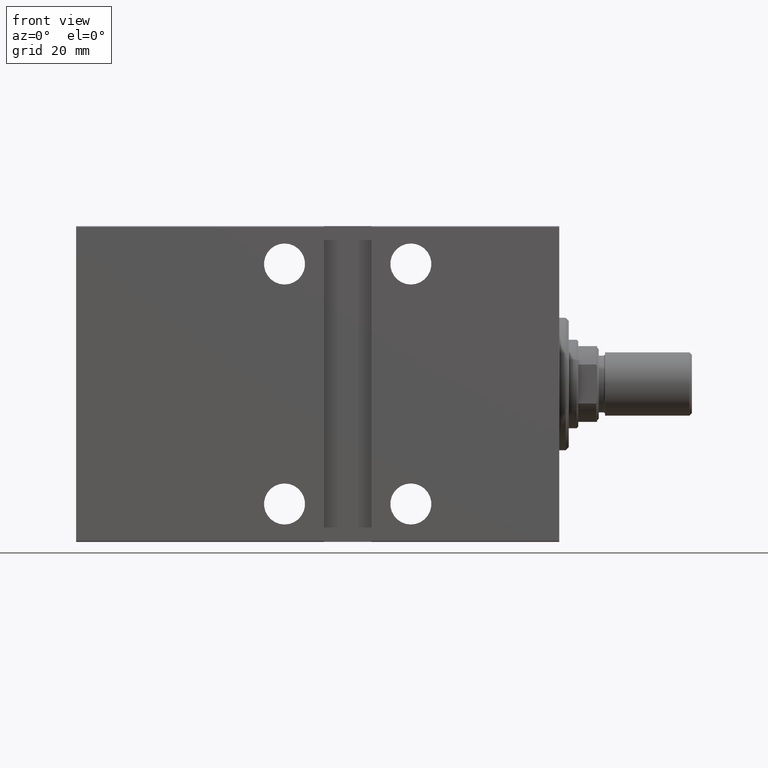
[diagram: clean part render]
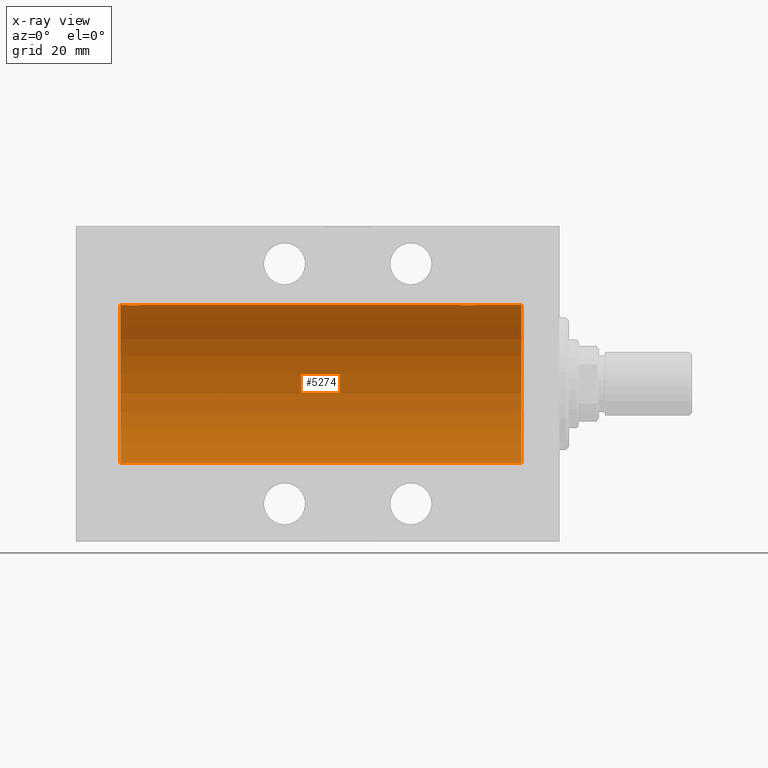
[diagram: x-ray — body ghosted, one internal face saturated and labeled with its STEP entity id]
A machine part, front view, then the same camera in x-ray: the body is ghosted and one INTERNAL B-rep face — a face not visible from any outside direction — is saturated and labeled: STEP entity #5274.
In plain terms, the highlighted cylindrical surface (partial cylindrical patch) has radius 25 mm, axis along (1, 0, -0).
Its self-contained STEP definition (entity closure, byte-faithful):
#145 = ORIENTED_EDGE ( 'NONE', *, *, #17108, .T. ) ;
#397 = B_SPLINE_CURVE_WITH_KNOTS ( 'NONE', 3,
 ( #5100, #12261, #42761, #12038, #22367, #29544, #15187, #9367, #28862, #36041, #15649, #2197, #19003, #25495, #25719, #36273, #32681, #40090, #18552, #16098, #29318, #42528, #39184, #25944, #22601, #36720, #8468, #29771, #18772, #43214, #26177, #39630 ),
 .UNSPECIFIED., .F., .F.,
 ( 4, 2, 2, 2, 2, 2, 2, 2, 2, 2, 2, 2, 2, 2, 2, 4 ),
 ( 0.007821024441662268595, 0.008309723826317871528, 0.008798423210973474462, 0.009287122595629077396, 0.009775821980284680329, 0.01026452136494028326, 0.01075322074959588620, 0.01124192013425148913, 0.01173061951890709206, 0.01221931890356269326, 0.01270801828821829793, 0.01319671767287389913, 0.01368541705752950380, 0.01417411644218510500, 0.01466281582684070967, 0.01564021459615191553 ),
 .UNSPECIFIED. ) ;
#599 = B_SPLINE_CURVE_WITH_KNOTS ( 'NONE', 3,
 ( #11689, #8784, #11259, #25375, #28519, #42188, #22242, #35916, #8347, #32326, #28965, #42633, #5199, #7899, #18873, #22469, #16419, #12594, #33223, #22926, #19108, #2294, #32784, #19335, #2519, #40185, #12819, #2077, #23369, #15968, #15749, #30083 ),
 .UNSPECIFIED., .F., .F.,
 ( 4, 2, 2, 2, 2, 2, 2, 2, 2, 2, 2, 2, 2, 2, 2, 4 ),
 ( 0.007821024441662306759, 0.008309723826317914896, 0.008798423210973523034, 0.009287122595629131172, 0.009775821980284739310, 0.01026452136494034745, 0.01075322074959595559, 0.01124192013425156372, 0.01173061951890717186, 0.01221931890356278000, 0.01270801828821838814, 0.01319671767287399627, 0.01368541705752960441, 0.01417411644218521255, 0.01466281582684082069, 0.01564021459615200227 ),
 .UNSPECIFIED. ) ;
#1891 = CARTESIAN_POINT ( 'NONE',  ( 26.50000000000000355, -1.940518940753166940E-23, 25.00000000000000000 ) ) ;
#2037 = EDGE_CURVE ( 'NONE', #37547, #6848, #8237, .T. ) ;
#2077 = CARTESIAN_POINT ( 'NONE',  ( 137.1682764149395268, -1.255214705003177889, 24.96884293994577320 ) ) ;
#2197 = CARTESIAN_POINT ( 'NONE',  ( 27.74616804575498108, -2.169003991399864439, 24.90589728951138682 ) ) ;
#2294 = CARTESIAN_POINT ( 'NONE',  ( 136.1072384583841313, -2.247417070759885060, 24.89885693081946982 ) ) ;
#2519 = CARTESIAN_POINT ( 'NONE',  ( 136.6512113355911140, -1.884161199660612240, 24.92916496727982079 ) ) ;
#2910 = VERTEX_POINT ( 'NONE', #40506 ) ;
#3896 = ORIENTED_EDGE ( 'NONE', *, *, #35871, .T. ) ;
#4393 = CARTESIAN_POINT ( 'NONE',  ( 139.0000000000000000, 3.061616997868383043E-15, -25.00000000000000000 ) ) ;
#4801 = ORIENTED_EDGE ( 'NONE', *, *, #21903, .T. ) ;
#4816 = VECTOR ( 'NONE', #33302, 1000.000000000000000 ) ;
#5100 = CARTESIAN_POINT ( 'NONE',  ( 26.50000000000000355, -1.940518940753166940E-23, 25.00000000000000000 ) ) ;
#5199 = CARTESIAN_POINT ( 'NONE',  ( 133.8896320349114148, -2.245863995402891611, 24.89899750494197761 ) ) ;
#5274 = ADVANCED_FACE ( 'NONE', ( #38021 ), #6664, .F. ) ;
#5757 = ORIENTED_EDGE ( 'NONE', *, *, #23548, .F. ) ;
#6564 = CARTESIAN_POINT ( 'NONE',  ( 12.00000000000001066, 3.061616997868383043E-15, -25.00000000000000000 ) ) ;
#6664 = CYLINDRICAL_SURFACE ( 'NONE', #8171, 25.00000000000000000 ) ;
#6848 = VERTEX_POINT ( 'NONE', #26463 ) ;
#7094 = CARTESIAN_POINT ( 'NONE',  ( 132.5000000000000000, -1.941505016884693205E-23, 25.00000000000000000 ) ) ;
#7449 = DIRECTION ( 'NONE',  ( -1.000000000000000000, 0.000000000000000000, 0.000000000000000000 ) ) ;
#7891 = DIRECTION ( 'NONE',  ( 0.000000000000000000, 0.000000000000000000, 1.000000000000000000 ) ) ;
#7899 = CARTESIAN_POINT ( 'NONE',  ( 134.1921165759419239, -2.371528299825738539, 24.88734287464371064 ) ) ;
#8171 = AXIS2_PLACEMENT_3D ( 'NONE', #16970, #13607, #27285 ) ;
#8237 = CIRCLE ( 'NONE', #26846, 25.00000000000000000 ) ;
#8347 = CARTESIAN_POINT ( 'NONE',  ( 133.1158761721353017, -1.651251241585098395, 24.94567559498349141 ) ) ;
#8468 = CARTESIAN_POINT ( 'NONE',  ( 30.98538033717094464, -1.528152964861309915, 24.95362559291378801 ) ) ;
#8784 = CARTESIAN_POINT ( 'NONE',  ( 132.4999999999999716, -0.1631750940176176501, 25.00000000000000711 ) ) ;
#9367 = CARTESIAN_POINT ( 'NONE',  ( 27.01250184165601809, -1.525407911884361756, 24.95379469572361586 ) ) ;
#9440 = EDGE_CURVE ( 'NONE', #19372, #23324, #10414, .T. ) ;
#10414 = LINE ( 'NONE', #27246, #28327 ) ;
#11259 = CARTESIAN_POINT ( 'NONE',  ( 132.5158215994234752, -0.3254210271412192879, 24.99840249400844527 ) ) ;
#11689 = CARTESIAN_POINT ( 'NONE',  ( 132.5000000000000000, -1.941505016884693205E-23, 25.00000000000000000 ) ) ;
#12038 = CARTESIAN_POINT ( 'NONE',  ( 26.57985090779070703, -0.6480119923854216202, 24.99212088949391131 ) ) ;
#12261 = CARTESIAN_POINT ( 'NONE',  ( 26.50000000000000711, -0.1631750940176204812, 25.00000000000000711 ) ) ;
#12594 = CARTESIAN_POINT ( 'NONE',  ( 135.1632358963854585, -2.500125740978183853, 24.87467329022545570 ) ) ;
#12819 = CARTESIAN_POINT ( 'NONE',  ( 136.9853803371709375, -1.528152964861306584, 24.95362559291379156 ) ) ;
#13607 = DIRECTION ( 'NONE',  ( -1.000000000000000000, -0.000000000000000000, -0.000000000000000000 ) ) ;
#13984 = CARTESIAN_POINT ( 'NONE',  ( 139.0000000000000000, 3.061616997868383043E-15, -25.00000000000000000 ) ) ;
#14469 = CIRCLE ( 'NONE', #39545, 25.00000000000000000 ) ;
#15187 = CARTESIAN_POINT ( 'NONE',  ( 26.82988709719076681, -1.252049606094334910, 24.96900299967627390 ) ) ;
#15649 = CARTESIAN_POINT ( 'NONE',  ( 27.47463817756919724, -1.987446652080258724, 24.92104239223420947 ) ) ;
#15749 = CARTESIAN_POINT ( 'NONE',  ( 137.5000000000000284, -0.3305063766663746128, 25.00000000000000711 ) ) ;
#15968 = CARTESIAN_POINT ( 'NONE',  ( 137.4334935523974934, -0.6588655613945783029, 24.99312727339971119 ) ) ;
#16098 = CARTESIAN_POINT ( 'NONE',  ( 29.64560666148631896, -2.420689345803753501, 24.88254961038874313 ) ) ;
#16419 = CARTESIAN_POINT ( 'NONE',  ( 134.8329350482193831, -2.499872792855069470, 24.87469871246082675 ) ) ;
#16970 = CARTESIAN_POINT ( 'NONE',  ( 139.0000000000000000, 0.000000000000000000, 0.000000000000000000 ) ) ;
#17108 = EDGE_CURVE ( 'NONE', #37547, #23491, #35109, .T. ) ;
#17146 = DIRECTION ( 'NONE',  ( -1.000000000000000000, -0.000000000000000000, -0.000000000000000000 ) ) ;
#18552 = CARTESIAN_POINT ( 'NONE',  ( 29.32596570039460104, -2.484007091859757654, 24.87630842367763861 ) ) ;
#18772 = CARTESIAN_POINT ( 'NONE',  ( 31.24606379094066710, -1.109818057797416824, 24.97580694515542632 ) ) ;
#18873 = CARTESIAN_POINT ( 'NONE',  ( 134.3509560983090978, -2.419770561643896922, 24.88263927071751880 ) ) ;
#19003 = CARTESIAN_POINT ( 'NONE',  ( 27.88963203491136511, -2.245863995402893831, 24.89899750494197406 ) ) ;
#19108 = CARTESIAN_POINT ( 'NONE',  ( 135.8043566091629941, -2.372734907014162786, 24.88722742718433167 ) ) ;
#19262 = CARTESIAN_POINT ( 'NONE',  ( 137.5000000000000000, 9.792438154224103788E-16, 25.00000000000000000 ) ) ;
#19335 = CARTESIAN_POINT ( 'NONE',  ( 136.5225677434019076, -1.989585286700244149, 24.92087098724766037 ) ) ;
#19372 = VERTEX_POINT ( 'NONE', #1891 ) ;
#19427 = CARTESIAN_POINT ( 'NONE',  ( 139.0000000000000000, 0.000000000000000000, 25.00000000000000000 ) ) ;
#19635 = EDGE_LOOP ( 'NONE', ( #37555, #145, #4801, #34402, #37245, #5757, #3896, #41365 ) ) ;
#21903 = EDGE_CURVE ( 'NONE', #23491, #23324, #14469, .T. ) ;
#21953 = VERTEX_POINT ( 'NONE', #7094 ) ;
#22242 = CARTESIAN_POINT ( 'NONE',  ( 132.8298870971908059, -1.252049606094330914, 24.96900299967627745 ) ) ;
#22367 = CARTESIAN_POINT ( 'NONE',  ( 26.62784030591393147, -0.8058335233485444116, 24.98746277938383642 ) ) ;
#22469 = CARTESIAN_POINT ( 'NONE',  ( 134.6705231988572962, -2.483544361357258978, 24.87635491893502149 ) ) ;
#22601 = CARTESIAN_POINT ( 'NONE',  ( 30.65121133559111755, -1.884161199660612906, 24.92916496727982434 ) ) ;
#22926 = CARTESIAN_POINT ( 'NONE',  ( 135.6456066614863403, -2.420689345803753501, 24.88254961038873603 ) ) ;
#23324 = VERTEX_POINT ( 'NONE', #29059 ) ;
#23369 = CARTESIAN_POINT ( 'NONE',  ( 137.2460637909406671, -1.109818057797406832, 24.97580694515542277 ) ) ;
#23491 = VERTEX_POINT ( 'NONE', #6564 ) ;
#23548 = EDGE_CURVE ( 'NONE', #21953, #2910, #31201, .T. ) ;
#23843 = VECTOR ( 'NONE', #31738, 1000.000000000000000 ) ;
#25375 = CARTESIAN_POINT ( 'NONE',  ( 132.5798509077906999, -0.6480119923854186226, 24.99212088949390420 ) ) ;
#25495 = CARTESIAN_POINT ( 'NONE',  ( 28.19211657594194520, -2.371528299825740760, 24.88734287464371420 ) ) ;
#25719 = CARTESIAN_POINT ( 'NONE',  ( 28.35095609830903740, -2.419770561643901363, 24.88263927071751169 ) ) ;
#25944 = CARTESIAN_POINT ( 'NONE',  ( 30.52256774340189338, -1.989585286700240596, 24.92087098724766747 ) ) ;
#26166 = CARTESIAN_POINT ( 'NONE',  ( 12.00000000000001066, 0.000000000000000000, 0.000000000000000000 ) ) ;
#26177 = CARTESIAN_POINT ( 'NONE',  ( 31.49999999999996447, -0.3305063766663697833, 24.99999999999999645 ) ) ;
#26463 = CARTESIAN_POINT ( 'NONE',  ( 139.0000000000000000, 0.000000000000000000, 25.00000000000000000 ) ) ;
#26846 = AXIS2_PLACEMENT_3D ( 'NONE', #28510, #7449, #7891 ) ;
#27246 = CARTESIAN_POINT ( 'NONE',  ( 139.0000000000000000, 0.000000000000000000, 25.00000000000000000 ) ) ;
#27285 = DIRECTION ( 'NONE',  ( 0.000000000000000000, 0.000000000000000000, 1.000000000000000000 ) ) ;
#28327 = VECTOR ( 'NONE', #17146, 1000.000000000000000 ) ;
#28510 = CARTESIAN_POINT ( 'NONE',  ( 139.0000000000000000, 0.000000000000000000, 0.000000000000000000 ) ) ;
#28519 = CARTESIAN_POINT ( 'NONE',  ( 132.6278403059139919, -0.8058335233485485194, 24.98746277938383642 ) ) ;
#28862 = CARTESIAN_POINT ( 'NONE',  ( 27.11587617213528389, -1.651251241585097063, 24.94567559498348430 ) ) ;
#28965 = CARTESIAN_POINT ( 'NONE',  ( 133.4746381775692043, -1.987446652080248732, 24.92104239223420592 ) ) ;
#29059 = CARTESIAN_POINT ( 'NONE',  ( 12.00000000000001066, 0.000000000000000000, 25.00000000000000000 ) ) ;
#29318 = CARTESIAN_POINT ( 'NONE',  ( 29.80435660916301543, -2.372734907014168115, 24.88722742718433878 ) ) ;
#29544 = CARTESIAN_POINT ( 'NONE',  ( 26.75239748980449406, -1.106703319666880514, 24.97594585958024282 ) ) ;
#29771 = CARTESIAN_POINT ( 'NONE',  ( 31.16827641493956591, -1.255214705003181441, 24.96884293994578030 ) ) ;
#29986 = VERTEX_POINT ( 'NONE', #19262 ) ;
#30083 = CARTESIAN_POINT ( 'NONE',  ( 137.5000000000000000, 9.792438154224103788E-16, 25.00000000000000000 ) ) ;
#30591 = CARTESIAN_POINT ( 'NONE',  ( 139.0000000000000000, 0.000000000000000000, 25.00000000000000000 ) ) ;
#31201 = LINE ( 'NONE', #19427, #40351 ) ;
#31738 = DIRECTION ( 'NONE',  ( -1.000000000000000000, -0.000000000000000000, -0.000000000000000000 ) ) ;
#32326 = CARTESIAN_POINT ( 'NONE',  ( 133.3461666385065882, -1.881857718844712313, 24.92933960374834257 ) ) ;
#32681 = CARTESIAN_POINT ( 'NONE',  ( 28.83293504821939024, -2.499872792855073467, 24.87469871246082675 ) ) ;
#32784 = CARTESIAN_POINT ( 'NONE',  ( 136.2508402392405458, -2.170728182476716839, 24.90574631553725027 ) ) ;
#33223 = CARTESIAN_POINT ( 'NONE',  ( 135.3259657003945904, -2.484007091859755434, 24.87630842367763151 ) ) ;
#33302 = DIRECTION ( 'NONE',  ( -1.000000000000000000, -0.000000000000000000, -0.000000000000000000 ) ) ;
#34402 = ORIENTED_EDGE ( 'NONE', *, *, #9440, .F. ) ;
#35109 = LINE ( 'NONE', #4393, #23843 ) ;
#35871 = EDGE_CURVE ( 'NONE', #21953, #29986, #599, .T. ) ;
#35916 = CARTESIAN_POINT ( 'NONE',  ( 133.0125018416560465, -1.525407911884357093, 24.95379469572362297 ) ) ;
#36041 = CARTESIAN_POINT ( 'NONE',  ( 27.34616663850663087, -1.881857718844711869, 24.92933960374833902 ) ) ;
#36273 = CARTESIAN_POINT ( 'NONE',  ( 28.67052319885732103, -2.483544361357262531, 24.87635491893501793 ) ) ;
#36666 = LINE ( 'NONE', #30591, #4816 ) ;
#36688 = DIRECTION ( 'NONE',  ( -1.000000000000000000, -0.000000000000000000, -0.000000000000000000 ) ) ;
#36720 = CARTESIAN_POINT ( 'NONE',  ( 30.88185954148645251, -1.653834020452935816, 24.94550385189585029 ) ) ;
#37245 = ORIENTED_EDGE ( 'NONE', *, *, #39768, .T. ) ;
#37547 = VERTEX_POINT ( 'NONE', #13984 ) ;
#37555 = ORIENTED_EDGE ( 'NONE', *, *, #2037, .F. ) ;
#38021 = FACE_OUTER_BOUND ( 'NONE', #19635, .T. ) ;
#39184 = CARTESIAN_POINT ( 'NONE',  ( 30.25084023924055288, -2.170728182476714174, 24.90574631553725027 ) ) ;
#39239 = EDGE_CURVE ( 'NONE', #6848, #29986, #36666, .T. ) ;
#39545 = AXIS2_PLACEMENT_3D ( 'NONE', #26166, #43436, #39859 ) ;
#39630 = CARTESIAN_POINT ( 'NONE',  ( 31.50000000000000000, -6.470145921101463186E-15, 25.00000000000000000 ) ) ;
#39768 = EDGE_CURVE ( 'NONE', #19372, #2910, #397, .T. ) ;
#39859 = DIRECTION ( 'NONE',  ( 0.000000000000000000, 0.000000000000000000, 1.000000000000000000 ) ) ;
#40090 = CARTESIAN_POINT ( 'NONE',  ( 29.16323589638542657, -2.500125740978187849, 24.87467329022545570 ) ) ;
#40185 = CARTESIAN_POINT ( 'NONE',  ( 136.8818595414864205, -1.653834020452934483, 24.94550385189584318 ) ) ;
#40351 = VECTOR ( 'NONE', #36688, 1000.000000000000000 ) ;
#40506 = CARTESIAN_POINT ( 'NONE',  ( 31.50000000000000000, -6.470145921101463186E-15, 25.00000000000000000 ) ) ;
#41365 = ORIENTED_EDGE ( 'NONE', *, *, #39239, .F. ) ;
#42188 = CARTESIAN_POINT ( 'NONE',  ( 132.7523974898045083, -1.106703319666884733, 24.97594585958023217 ) ) ;
#42528 = CARTESIAN_POINT ( 'NONE',  ( 30.10723845838409929, -2.247417070759890834, 24.89885693081946272 ) ) ;
#42633 = CARTESIAN_POINT ( 'NONE',  ( 133.7461680457550131, -2.169003991399856890, 24.90589728951138682 ) ) ;
#42761 = CARTESIAN_POINT ( 'NONE',  ( 26.51582159942343253, -0.3254210271412220079, 24.99840249400844527 ) ) ;
#43214 = CARTESIAN_POINT ( 'NONE',  ( 31.43349355239747567, -0.6588655613945901823, 24.99312727339969697 ) ) ;
#43436 = DIRECTION ( 'NONE',  ( -1.000000000000000000, 0.000000000000000000, 0.000000000000000000 ) ) ;